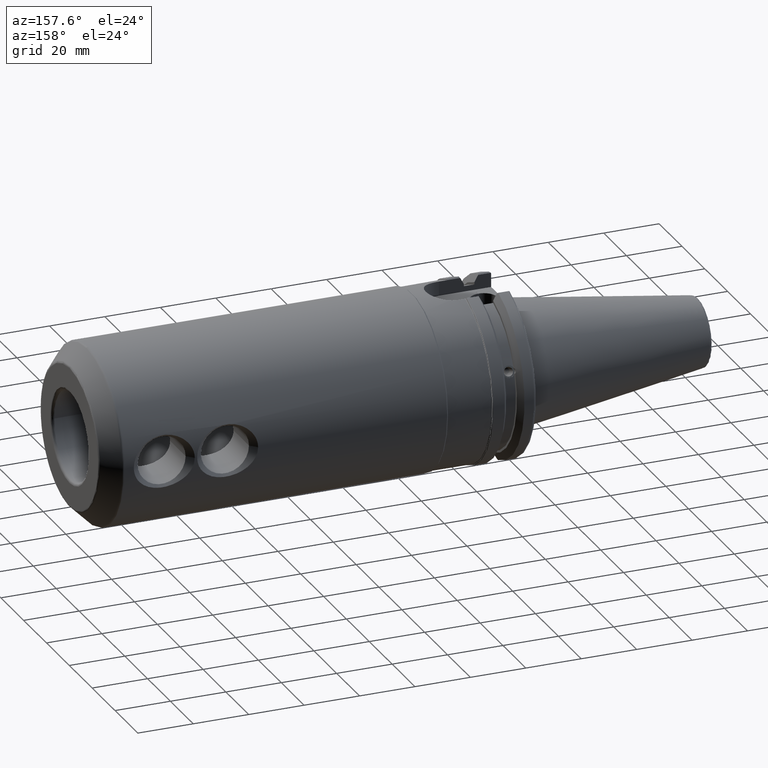
[diagram: clean part render]
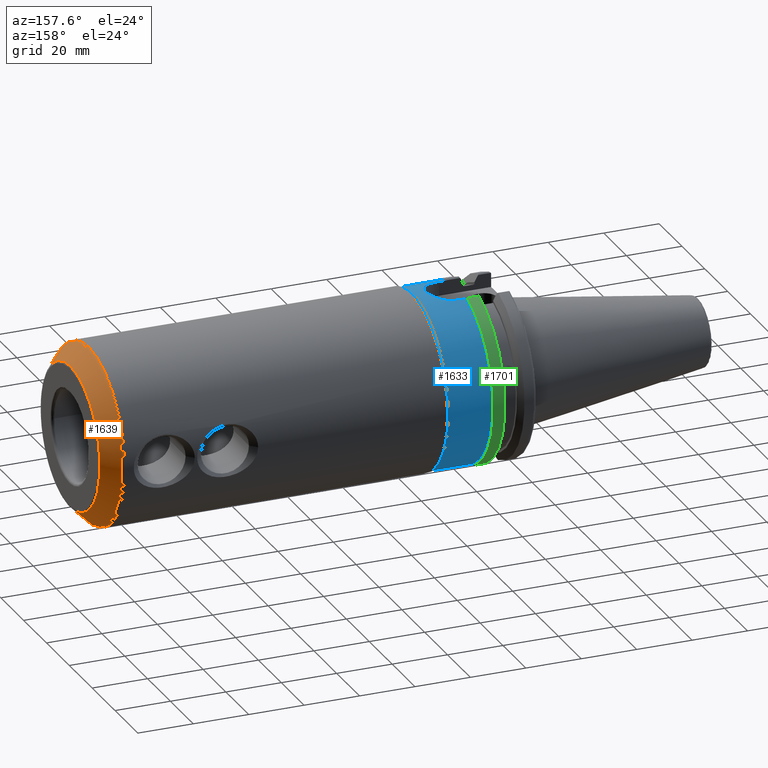
[diagram: same view with three faces highlighted in distinct colors, each labeled with its STEP entity id]
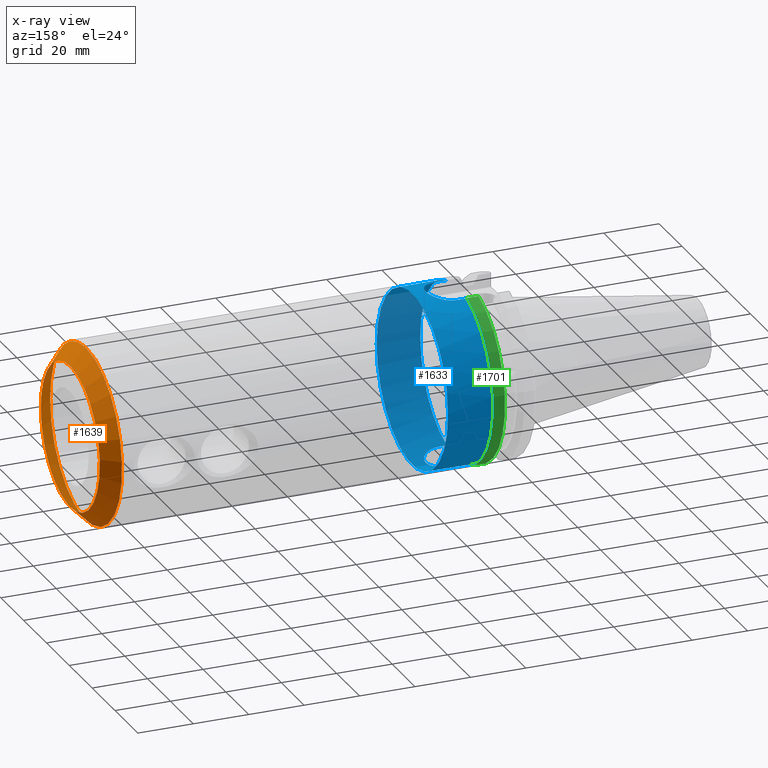
[diagram: x-ray of the same camera — body ghosted, the three highlighted faces saturated]
A machine part, auxiliary view with three faces highlighted in distinct colors.
The next image is the same camera in x-ray (body ghosted, the three faces saturated) — at least one of them is partly hidden behind the body in this view.
Their STEP definitions:

[orange] entity #1639 — the highlighted conical surface has half-angle 45 deg.
#158=FACE_OUTER_BOUND('',#254,.T.);
#254=EDGE_LOOP('',(#1167,#1168,#1169,#1170,#1171,#1172));
#416=CIRCLE('',#1771,31.4571067811865);
#417=CIRCLE('',#1772,31.4571067811865);
#421=CIRCLE('',#1777,25.7928932188134);
#422=CIRCLE('',#1778,25.7928932188134);
#496=LINE('',#2759,#586);
#586=VECTOR('',#2023,28.625);
#703=VERTEX_POINT('',#2746);
#704=VERTEX_POINT('',#2747);
#707=VERTEX_POINT('',#2756);
#708=VERTEX_POINT('',#2757);
#884=EDGE_CURVE('',#703,#704,#416,.T.);
#885=EDGE_CURVE('',#704,#703,#417,.T.);
#889=EDGE_CURVE('',#707,#708,#421,.T.);
#890=EDGE_CURVE('',#707,#704,#496,.T.);
#891=EDGE_CURVE('',#708,#707,#422,.T.);
#1167=ORIENTED_EDGE('',*,*,#889,.F.);
#1168=ORIENTED_EDGE('',*,*,#890,.T.);
#1169=ORIENTED_EDGE('',*,*,#884,.F.);
#1170=ORIENTED_EDGE('',*,*,#885,.F.);
#1171=ORIENTED_EDGE('',*,*,#890,.F.);
#1172=ORIENTED_EDGE('',*,*,#891,.F.);
#1614=CONICAL_SURFACE('',#1776,28.625,0.785398163397446);
#1639=ADVANCED_FACE('',(#158),#1614,.T.);
#1771=AXIS2_PLACEMENT_3D('',#2748,#2009,#2010);
#1772=AXIS2_PLACEMENT_3D('',#2749,#2011,#2012);
#1776=AXIS2_PLACEMENT_3D('',#2755,#2019,#2020);
#1777=AXIS2_PLACEMENT_3D('',#2758,#2021,#2022);
#1778=AXIS2_PLACEMENT_3D('',#2760,#2024,#2025);
#2009=DIRECTION('center_axis',(-1.,0.,0.));
#2010=DIRECTION('ref_axis',(0.,-1.,3.06161699786838E-17));
#2011=DIRECTION('center_axis',(-1.,0.,0.));
#2012=DIRECTION('ref_axis',(0.,-1.,3.06161699786838E-17));
#2019=DIRECTION('center_axis',(-1.,0.,0.));
#2020=DIRECTION('ref_axis',(0.,1.,0.));
#2021=DIRECTION('center_axis',(1.,0.,0.));
#2022=DIRECTION('ref_axis',(0.,-1.,3.06161699786838E-17));
#2023=DIRECTION('',(-0.707106781186549,-0.707106781186546,-8.65956056235491E-17));
#2024=DIRECTION('center_axis',(1.,0.,0.));
#2025=DIRECTION('ref_axis',(0.,-1.,3.06161699786838E-17));
#2746=CARTESIAN_POINT('',(152.742893218813,-3.85238451300166E-15,31.4571067811865));
#2747=CARTESIAN_POINT('',(152.742893218813,-31.4571067811865,-3.85238451300166E-15));
#2748=CARTESIAN_POINT('Origin',(152.742893218813,0.,-4.81548064125208E-15));
#2749=CARTESIAN_POINT('Origin',(152.742893218813,0.,-4.81548064125208E-15));
#2755=CARTESIAN_POINT('Origin',(155.575,0.,0.));
#2756=CARTESIAN_POINT('',(158.407106781187,-25.7928932188134,-3.15871841211693E-15));
#2757=CARTESIAN_POINT('',(158.407106781187,-3.15871841211693E-15,25.7928932188134));
#2758=CARTESIAN_POINT('Origin',(158.407106781187,0.,-3.94839801514617E-15));
#2759=CARTESIAN_POINT('',(155.575,-28.625,-3.5055514625593E-15));
#2760=CARTESIAN_POINT('Origin',(158.407106781187,0.,-3.94839801514617E-15));

[blue] entity #1633 — the highlighted cylindrical surface (bore or boss wall) has radius 31.25 mm, axis along (1, 0, 0).
#115=CYLINDRICAL_SURFACE('',#1756,31.25);
#152=FACE_OUTER_BOUND('',#245,.T.);
#245=EDGE_LOOP('',(#1127,#1128,#1129,#1130,#1131,#1132,#1133,#1134,#1135,
#1136,#1137,#1138));
#364=B_SPLINE_CURVE_WITH_KNOTS('',3,(#2652,#2653,#2654,#2655,#2656,#2657,
#2658,#2659,#2660,#2661,#2662,#2663,#2664,#2665,#2666,#2667,#2668,#2669),
 .UNSPECIFIED.,.F.,.F.,(4,2,2,2,2,2,2,2,4),(-2.48058401696442,-2.1704846734033,
-1.86038532984218,-1.5503386691622,-1.24029200848221,-0.930245347802225,
-0.620198687122238,-0.310099343561119,0.),.UNSPECIFIED.);
#365=B_SPLINE_CURVE_WITH_KNOTS('',3,(#2677,#2678,#2679,#2680,#2681,#2682,
#2683,#2684,#2685,#2686,#2687,#2688,#2689,#2690,#2691,#2692,#2693,#2694),
 .UNSPECIFIED.,.F.,.F.,(4,2,2,2,2,2,2,2,4),(-2.48058401696442,-2.1704846734033,
-1.86038532984218,-1.5503386691622,-1.24029200848221,-0.930245347802224,
-0.620198687122237,-0.310099343561118,0.),.UNSPECIFIED.);
#405=CIRCLE('',#1754,31.25);
#406=CIRCLE('',#1755,31.25);
#407=CIRCLE('',#1757,31.25);
#408=CIRCLE('',#1758,31.25);
#490=LINE('',#2648,#580);
#491=LINE('',#2650,#581);
#492=LINE('',#2671,#582);
#493=LINE('',#2675,#583);
#494=LINE('',#2695,#584);
#580=VECTOR('',#1977,31.25);
#581=VECTOR('',#1978,10.);
#582=VECTOR('',#1979,10.);
#583=VECTOR('',#1982,10.);
#584=VECTOR('',#1983,10.);
#684=VERTEX_POINT('',#2628);
#685=VERTEX_POINT('',#2635);
#686=VERTEX_POINT('',#2637);
#687=VERTEX_POINT('',#2646);
#688=VERTEX_POINT('',#2649);
#689=VERTEX_POINT('',#2651);
#690=VERTEX_POINT('',#2670);
#691=VERTEX_POINT('',#2672);
#692=VERTEX_POINT('',#2674);
#693=VERTEX_POINT('',#2676);
#860=EDGE_CURVE('',#684,#685,#405,.T.);
#861=EDGE_CURVE('',#685,#686,#406,.T.);
#863=EDGE_CURVE('',#687,#687,#407,.T.);
#864=EDGE_CURVE('',#687,#685,#490,.T.);
#865=EDGE_CURVE('',#684,#688,#491,.T.);
#866=EDGE_CURVE('',#688,#689,#364,.T.);
#867=EDGE_CURVE('',#689,#690,#492,.T.);
#868=EDGE_CURVE('',#691,#690,#408,.T.);
#869=EDGE_CURVE('',#691,#692,#493,.T.);
#870=EDGE_CURVE('',#692,#693,#365,.T.);
#871=EDGE_CURVE('',#693,#686,#494,.T.);
#1127=ORIENTED_EDGE('',*,*,#863,.F.);
#1128=ORIENTED_EDGE('',*,*,#864,.T.);
#1129=ORIENTED_EDGE('',*,*,#860,.F.);
#1130=ORIENTED_EDGE('',*,*,#865,.T.);
#1131=ORIENTED_EDGE('',*,*,#866,.T.);
#1132=ORIENTED_EDGE('',*,*,#867,.T.);
#1133=ORIENTED_EDGE('',*,*,#868,.F.);
#1134=ORIENTED_EDGE('',*,*,#869,.T.);
#1135=ORIENTED_EDGE('',*,*,#870,.T.);
#1136=ORIENTED_EDGE('',*,*,#871,.T.);
#1137=ORIENTED_EDGE('',*,*,#861,.F.);
#1138=ORIENTED_EDGE('',*,*,#864,.F.);
#1633=ADVANCED_FACE('',(#152),#115,.T.);
#1754=AXIS2_PLACEMENT_3D('',#2636,#1969,#1970);
#1755=AXIS2_PLACEMENT_3D('',#2638,#1971,#1972);
#1756=AXIS2_PLACEMENT_3D('',#2645,#1973,#1974);
#1757=AXIS2_PLACEMENT_3D('',#2647,#1975,#1976);
#1758=AXIS2_PLACEMENT_3D('',#2673,#1980,#1981);
#1969=DIRECTION('center_axis',(-1.,0.,0.));
#1970=DIRECTION('ref_axis',(0.,-1.,3.21624529935327E-16));
#1971=DIRECTION('center_axis',(-1.,0.,0.));
#1972=DIRECTION('ref_axis',(0.,-1.,3.21624529935327E-16));
#1973=DIRECTION('center_axis',(1.,0.,0.));
#1974=DIRECTION('ref_axis',(0.,1.,0.));
#1975=DIRECTION('center_axis',(1.,0.,0.));
#1976=DIRECTION('ref_axis',(0.,0.,-1.));
#1977=DIRECTION('',(-1.,0.,0.));
#1978=DIRECTION('',(1.,0.,0.));
#1979=DIRECTION('',(-1.,0.,0.));
#1980=DIRECTION('center_axis',(-1.,0.,0.));
#1981=DIRECTION('ref_axis',(0.,1.,0.));
#1982=DIRECTION('',(1.,0.,0.));
#1983=DIRECTION('',(-1.,0.,0.));
#2628=CARTESIAN_POINT('',(19.25,-8.19,-30.157692219399));
#2635=CARTESIAN_POINT('',(19.25,-31.25,-3.82702124733548E-15));
#2636=CARTESIAN_POINT('Origin',(19.25,0.,0.));
#2637=CARTESIAN_POINT('',(19.25,-8.19,30.157692219399));
#2638=CARTESIAN_POINT('Origin',(19.25,0.,0.));
#2645=CARTESIAN_POINT('Origin',(27.025,0.,0.));
#2646=CARTESIAN_POINT('',(35.,-31.25,-3.82702124733548E-15));
#2647=CARTESIAN_POINT('Origin',(35.,0.,0.));
#2648=CARTESIAN_POINT('',(27.025,-31.25,-3.82702124733548E-15));
#2649=CARTESIAN_POINT('',(21.985,-8.19,-30.157692219399));
#2650=CARTESIAN_POINT('',(27.025,-8.19,-30.157692219399));
#2651=CARTESIAN_POINT('',(21.985,8.19000000000001,-30.157692219399));
#2652=CARTESIAN_POINT('Ctrl Pts',(21.985,-8.19,-30.157692219399));
#2653=CARTESIAN_POINT('Ctrl Pts',(23.0186644785371,-8.19,-30.157692219399));
#2654=CARTESIAN_POINT('Ctrl Pts',(24.1177289031099,-7.98242969105082,-30.2163776881057));
#2655=CARTESIAN_POINT('Ctrl Pts',(26.1340267300331,-7.14515921681833,-30.4252421272864));
#2656=CARTESIAN_POINT('Ctrl Pts',(27.0517065657426,-6.51570251009308,-30.5720736251644));
#2657=CARTESIAN_POINT('Ctrl Pts',(28.5005794248904,-5.06682965094524,-30.8453094903202));
#2658=CARTESIAN_POINT('Ctrl Pts',(29.130131960371,-4.14909882987699,-30.9899080370957));
#2659=CARTESIAN_POINT('Ctrl Pts',(29.967472555723,-2.13261921574188,-31.193610827595));
#2660=CARTESIAN_POINT('Ctrl Pts',(30.175,-1.03348886893329,-31.25));
#2661=CARTESIAN_POINT('Ctrl Pts',(30.175,1.03348886893329,-31.25));
#2662=CARTESIAN_POINT('Ctrl Pts',(29.967472555723,2.13261921574189,-31.193610827595));
#2663=CARTESIAN_POINT('Ctrl Pts',(29.130131960371,4.14909882987699,-30.9899080370957));
#2664=CARTESIAN_POINT('Ctrl Pts',(28.5005794248904,5.06682965094524,-30.8453094903202));
#2665=CARTESIAN_POINT('Ctrl Pts',(27.0517065657426,6.51570251009308,-30.5720736251644));
#2666=CARTESIAN_POINT('Ctrl Pts',(26.1340267300331,7.14515921681833,-30.4252421272864));
#2667=CARTESIAN_POINT('Ctrl Pts',(24.1177289031099,7.98242969105081,-30.2163776881057));
#2668=CARTESIAN_POINT('Ctrl Pts',(23.0186644785371,8.19,-30.157692219399));
#2669=CARTESIAN_POINT('Ctrl Pts',(21.985,8.19,-30.157692219399));
#2670=CARTESIAN_POINT('',(19.25,8.19000000000001,-30.157692219399));
#2671=CARTESIAN_POINT('',(27.025,8.19000000000001,-30.157692219399));
#2672=CARTESIAN_POINT('',(19.25,8.18999999999999,30.157692219399));
#2673=CARTESIAN_POINT('Origin',(19.25,0.,0.));
#2674=CARTESIAN_POINT('',(21.985,8.18999999999999,30.157692219399));
#2675=CARTESIAN_POINT('',(27.025,8.18999999999999,30.157692219399));
#2676=CARTESIAN_POINT('',(21.985,-8.19,30.157692219399));
#2677=CARTESIAN_POINT('Ctrl Pts',(21.985,8.19,30.157692219399));
#2678=CARTESIAN_POINT('Ctrl Pts',(23.0186644785371,8.19,30.157692219399));
#2679=CARTESIAN_POINT('Ctrl Pts',(24.1177289031099,7.98242969105081,30.2163776881057));
#2680=CARTESIAN_POINT('Ctrl Pts',(26.1340267300331,7.14515921681832,30.4252421272864));
#2681=CARTESIAN_POINT('Ctrl Pts',(27.0517065657426,6.51570251009308,30.5720736251644));
#2682=CARTESIAN_POINT('Ctrl Pts',(28.5005794248904,5.06682965094524,30.8453094903202));
#2683=CARTESIAN_POINT('Ctrl Pts',(29.130131960371,4.14909882987699,30.9899080370957));
#2684=CARTESIAN_POINT('Ctrl Pts',(29.967472555723,2.13261921574189,31.193610827595));
#2685=CARTESIAN_POINT('Ctrl Pts',(30.175,1.0334888689333,31.25));
#2686=CARTESIAN_POINT('Ctrl Pts',(30.175,-1.03348886893328,31.25));
#2687=CARTESIAN_POINT('Ctrl Pts',(29.967472555723,-2.13261921574188,31.193610827595));
#2688=CARTESIAN_POINT('Ctrl Pts',(29.130131960371,-4.14909882987698,30.9899080370957));
#2689=CARTESIAN_POINT('Ctrl Pts',(28.5005794248904,-5.06682965094523,30.8453094903202));
#2690=CARTESIAN_POINT('Ctrl Pts',(27.0517065657426,-6.51570251009307,30.5720736251644));
#2691=CARTESIAN_POINT('Ctrl Pts',(26.1340267300331,-7.14515921681832,30.4252421272864));
#2692=CARTESIAN_POINT('Ctrl Pts',(24.1177289031099,-7.98242969105081,30.2163776881057));
#2693=CARTESIAN_POINT('Ctrl Pts',(23.0186644785371,-8.18999999999999,30.157692219399));
#2694=CARTESIAN_POINT('Ctrl Pts',(21.985,-8.18999999999999,30.157692219399));
#2695=CARTESIAN_POINT('',(27.025,-8.19,30.157692219399));

[green] entity #1701 — the highlighted cylindrical surface (partial cylindrical patch) has radius 31.75 mm, axis along (1, 0, 0).
#140=CYLINDRICAL_SURFACE('',#1909,31.75);
#220=FACE_OUTER_BOUND('',#330,.T.);
#330=EDGE_LOOP('',(#1530,#1531,#1532,#1533));
#449=CIRCLE('',#1853,31.75);
#463=CIRCLE('',#1880,31.75);
#545=LINE('',#3323,#635);
#568=LINE('',#3478,#658);
#635=VECTOR('',#2280,10.);
#658=VECTOR('',#2359,10.);
#778=VERTEX_POINT('',#3204);
#779=VERTEX_POINT('',#3208);
#802=VERTEX_POINT('',#3298);
#803=VERTEX_POINT('',#3309);
#992=EDGE_CURVE('',#779,#778,#449,.T.);
#1027=EDGE_CURVE('',#803,#802,#463,.T.);
#1029=EDGE_CURVE('',#779,#803,#545,.T.);
#1077=EDGE_CURVE('',#802,#778,#568,.T.);
#1530=ORIENTED_EDGE('',*,*,#1027,.F.);
#1531=ORIENTED_EDGE('',*,*,#1029,.F.);
#1532=ORIENTED_EDGE('',*,*,#992,.T.);
#1533=ORIENTED_EDGE('',*,*,#1077,.F.);
#1701=ADVANCED_FACE('',(#220),#140,.T.);
#1853=AXIS2_PLACEMENT_3D('',#3209,#2207,#2208);
#1880=AXIS2_PLACEMENT_3D('',#3320,#2275,#2276);
#1909=AXIS2_PLACEMENT_3D('',#3477,#2357,#2358);
#2207=DIRECTION('center_axis',(1.,0.,0.));
#2208=DIRECTION('ref_axis',(0.,0.,-1.));
#2275=DIRECTION('center_axis',(1.,0.,0.));
#2276=DIRECTION('ref_axis',(0.,1.,-6.12323399573676E-17));
#2280=DIRECTION('',(1.,0.,0.));
#2357=DIRECTION('center_axis',(1.,0.,0.));
#2358=DIRECTION('ref_axis',(0.,1.,0.));
#2359=DIRECTION('',(-1.,0.,0.));
#3204=CARTESIAN_POINT('',(14.6531667690756,8.67204822802685,30.5427254764662));
#3208=CARTESIAN_POINT('',(14.6531667690756,8.67204822802685,-30.5427254764662));
#3209=CARTESIAN_POINT('Origin',(14.6531667690756,0.,0.));
#3298=CARTESIAN_POINT('',(18.85,8.67204822802685,30.5427254764662));
#3309=CARTESIAN_POINT('',(18.85,8.67204822802685,-30.5427254764662));
#3320=CARTESIAN_POINT('Origin',(18.85,0.,0.));
#3323=CARTESIAN_POINT('',(16.8515833845378,8.67204822802685,-30.5427254764662));
#3477=CARTESIAN_POINT('Origin',(16.8515833845378,0.,0.));
#3478=CARTESIAN_POINT('',(16.8515833845378,8.67204822802685,30.5427254764662));